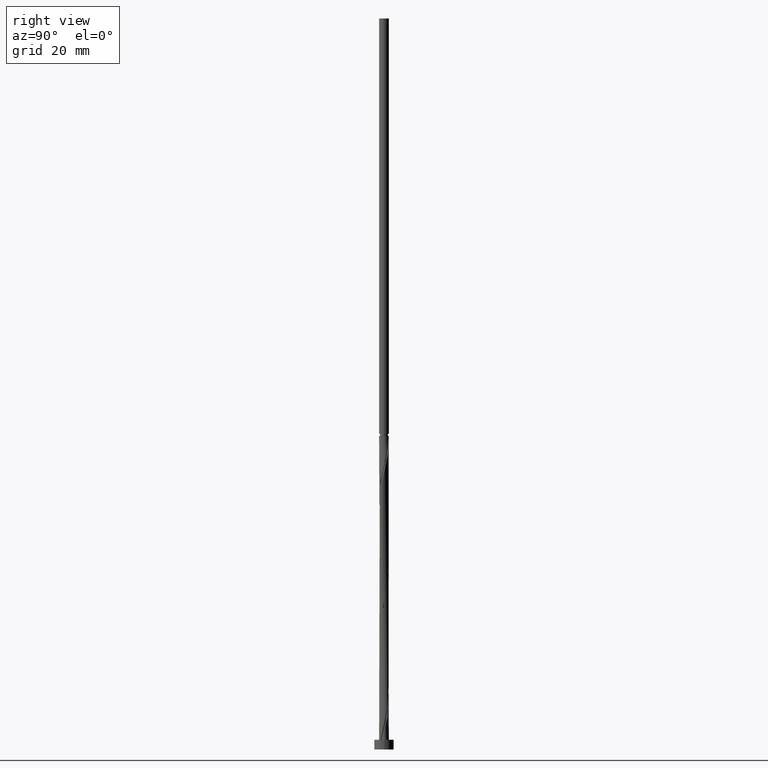
[diagram: clean part render]
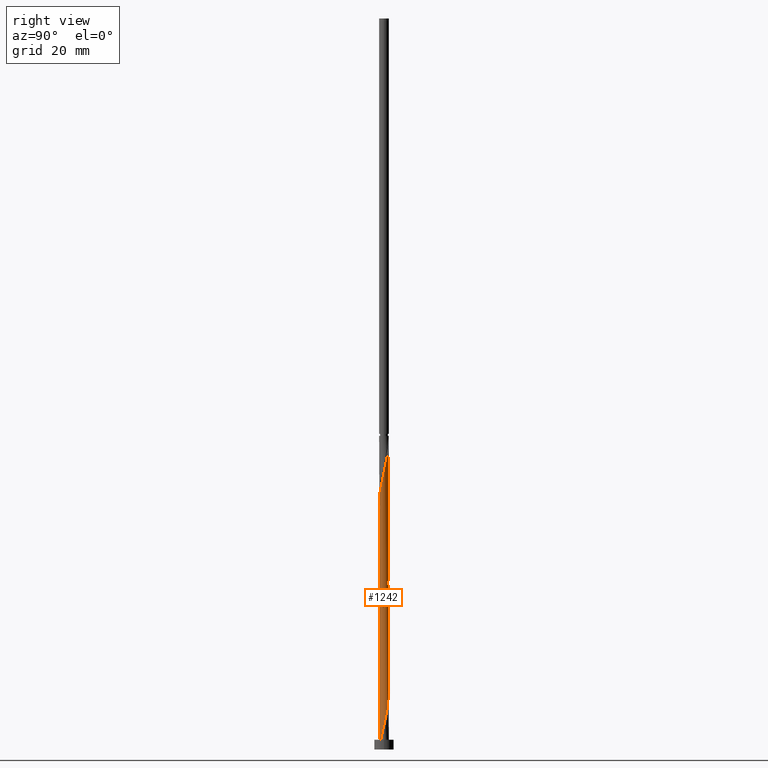
[diagram: same view with one face highlighted and labeled with its STEP entity id]
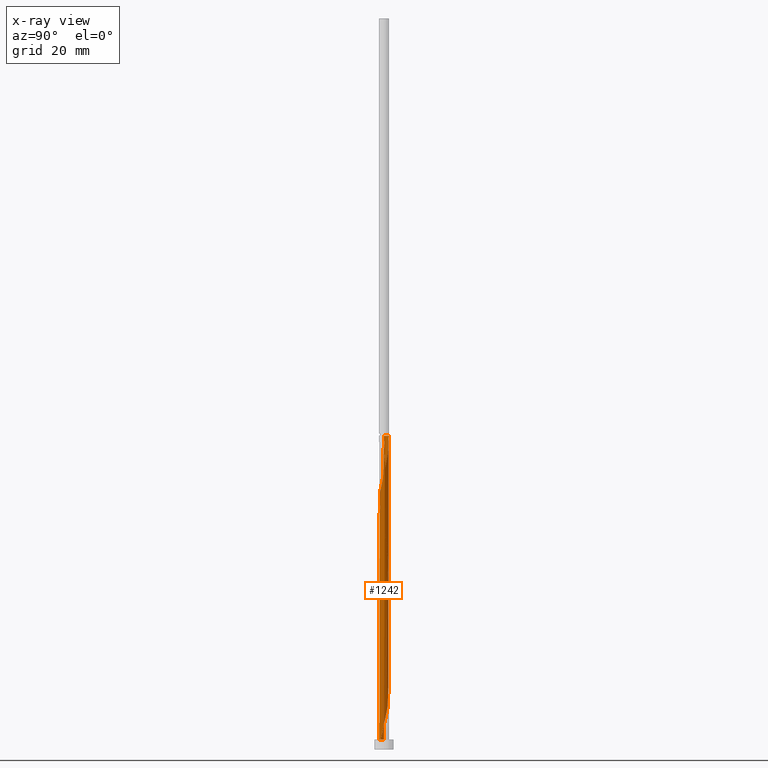
[diagram: x-ray of the same camera — body ghosted, the highlighted face saturated]
A machine part, right view. The second image highlights one B-rep face of the part: STEP entity #1242.
The next image is the same camera in x-ray: the body ghosted, the highlighted face saturated — about 0% of this face is hidden behind the body in this view.
In plain terms, the highlighted cylindrical surface (bore or boss wall) has radius 1 mm, axis along (-0, -0, -1).
Its self-contained STEP definition (entity closure, byte-faithful):
#22 = CARTESIAN_POINT ( 'NONE',  ( -0.6103189422011834342, 0.7921557856826090260, 41.32596282777176810 ) ) ;
#42 = CARTESIAN_POINT ( 'NONE',  ( 0.5941689777681992135, 0.8170896056626844040, 35.87141737322630064 ) ) ;
#51 = CARTESIAN_POINT ( 'NONE',  ( 0.9415987439861353003, -0.3661475155560138806, 55.26535676716571288 ) ) ;
#62 = CARTESIAN_POINT ( 'NONE',  ( 0.9900775620072779226, -0.2010438236649713384, 31.02293252474146001 ) ) ;
#67 = CARTESIAN_POINT ( 'NONE',  ( 0.2284171888200599854, 0.9841228509061507035, 62.53808403989298625 ) ) ;
#70 = CARTESIAN_POINT ( 'NONE',  ( 0.9900775620072779226, -0.2010438236649713384, 4.356265858074802821 ) ) ;
#81 = CARTESIAN_POINT ( 'NONE',  ( -0.8003017030801993226, -0.6165949901442923098, 21.32596282777177166 ) ) ;
#83 = VERTEX_POINT ( 'NONE', #260 ) ;
#87 = CARTESIAN_POINT ( 'NONE',  ( -1.000000000000001554, -2.243523105524465546E-16, 45.20572033737567352 ) ) ;
#90 = CARTESIAN_POINT ( 'NONE',  ( 0.3399002155363922140, 0.9513884807492792861, 10.41687191868085982 ) ) ;
#110 = EDGE_CURVE ( 'NONE', #224, #500, #1204, .T. ) ;
#113 = CARTESIAN_POINT ( 'NONE',  ( -0.1989974874213463751, 0.9800000000002894174, 64.35626585807480637 ) ) ;
#118 = DIRECTION ( 'NONE',  ( 1.000000000000000000, 0.000000000000000000, 0.000000000000000000 ) ) ;
#167 = CARTESIAN_POINT ( 'NONE',  ( 0.1989974874213180644, 0.9800000000000027578, 37.68959919140814208 ) ) ;
#176 =( BOUNDED_CURVE ( )  B_SPLINE_CURVE ( 2, ( #778, #1207, #515, #62, #485, #1359, #795, #906, #208, #1491, #1647, #367, #345, #768, #1088, #382, #1386, #1668, #1510, #81, #1791, #1348, #1376, #1518, #1771, #946, #622, #1528, #1196, #927, #634, #661, #240, #1047, #936, #1781, #496, #90, #219, #505, #1232, #1809, #1059, #652, #230, #1638, #355, #70, #1224, #914, #1501, #642, #1799 ),
 .UNSPECIFIED., .F., .T. ) 
 B_SPLINE_CURVE_WITH_KNOTS ( ( 3, 2, 2, 2, 2, 2, 2, 2, 2, 2, 2, 2, 2, 2, 2, 2, 2, 2, 2, 2, 2, 2, 2, 2, 2, 2, 3 ),
 ( 0.5545252162417515507, 0.5568181818181817677, 0.5681818181818182323, 0.5795454545454545858, 0.5909090909090909394, 0.6022727272727272929, 0.6136363636363636465, 0.6250000000000000000, 0.6363636363636363535, 0.6477272727272727071, 0.6590909090909090606, 0.6704545454545454142, 0.6818181818181817677, 0.6931818181818182323, 0.7045454545454545858, 0.7159090909090909394, 0.7272727272727272929, 0.7386363636363636465, 0.7500000000000000000, 0.7613636363636363535, 0.7727272727272727071, 0.7840909090909090606, 0.7954545454545454142, 0.8068181818181817677, 0.8181818181818182323, 0.8295454545454545858, 0.8345931953246565893 ),
 .UNSPECIFIED. ) 
 CURVE ( )  GEOMETRIC_REPRESENTATION_ITEM ( )  RATIONAL_B_SPLINE_CURVE ( ( 0.9061101570135590144, 0.9072237824201411227, 0.9090909090909183865, 0.8998376744372209579, 0.9090909090909183865, 0.8998376744372209579, 0.9090909090909183865, 0.8998376744372209579, 0.9090909090909183865, 0.8998376744372209579, 0.9090909090909183865, 0.8998376744372209579, 0.9090909090909183865, 0.8998376744372209579, 0.9090909090909183865, 0.8998376744372209579, 0.9090909090909183865, 0.8998376744372209579, 0.9090909090909183865, 0.8998376744372209579, 0.9090909090909183865, 0.8998376744372209579, 0.9090909090909183865, 0.8998376744372209579, 0.9090909090909183865, 0.8998376744372209579, 0.9090909090909183865, 0.8998376744372209579, 0.9090909090909183865, 0.8998376744372209579, 0.9090909090909183865, 0.8998376744372209579, 0.9090909090909183865, 0.8998376744372209579, 0.9090909090909183865, 0.8998376744372209579, 0.9090909090909183865, 0.8998376744372209579, 0.9090909090909183865, 0.8998376744372209579, 0.9090909090909183865, 0.8998376744372209579, 0.9090909090909183865, 0.8998376744372209579, 0.9090909090909183865, 0.8998376744372209579, 0.9090909090909183865, 0.8998376744372209579, 0.9090909090909183865, 0.8998376744372209579, 0.9090909090909183865, 0.9049806112596308072, 0.9045219117924107044 ) ) 
 REPRESENTATION_ITEM ( '' )  );
#177 = CYLINDRICAL_SURFACE ( 'NONE', #330, 1.000000000000000000 ) ;
#184 = CARTESIAN_POINT ( 'NONE',  ( 0.8933318736010463779, 0.4718372192107714858, 58.90172040352934602 ) ) ;
#194 = CARTESIAN_POINT ( 'NONE',  ( -0.05809475930624340839, 1.008611519250726341, 63.75020525201420440 ) ) ;
#196 = CARTESIAN_POINT ( 'NONE',  ( 1.000000000000001554, 2.243523105524465731E-17, 31.87238700404233072 ) ) ;
#208 = CARTESIAN_POINT ( 'NONE',  ( 0.6103189422011833232, -0.7921557856826091371, 27.99262949443844661 ) ) ;
#219 = CARTESIAN_POINT ( 'NONE',  ( 0.4670345966522957970, 0.8842390432059820116, 9.810811312620259628 ) ) ;
#223 = DIRECTION ( 'NONE',  ( -0.000000000000000000, -0.000000000000000000, -1.000000000000000000 ) ) ;
#224 = VERTEX_POINT ( 'NONE', #673 ) ;
#230 = CARTESIAN_POINT ( 'NONE',  ( 0.9741058992719002774, 0.2260922311882604674, 6.174447676256622053 ) ) ;
#240 = CARTESIAN_POINT ( 'NONE',  ( -0.3624206617887749671, 0.9320146264456312668, 13.44717494898389454 ) ) ;
#252 = DIRECTION ( 'NONE',  ( 0.000000000000000000, 0.000000000000000000, 1.000000000000000000 ) ) ;
#260 = CARTESIAN_POINT ( 'NONE',  ( 1.000000000000000000, 1.224646799147353207E-16, 64.35626585807480637 ) ) ;
#270 = CARTESIAN_POINT ( 'NONE',  ( 0.000000000000000000, 0.000000000000000000, 2.000000000000000000 ) ) ;
#306 = CARTESIAN_POINT ( 'NONE',  ( -1.000000000000001776, 0.02877552652381839410, 45.08362233265746255 ) ) ;
#316 = VERTEX_POINT ( 'NONE', #113 ) ;
#329 = ORIENTED_EDGE ( 'NONE', *, *, #1404, .F. ) ;
#330 = AXIS2_PLACEMENT_3D ( 'NONE', #863, #335, #1438 ) ;
#335 = DIRECTION ( 'NONE',  ( -0.000000000000000000, -0.000000000000000000, -1.000000000000000000 ) ) ;
#339 = ORIENTED_EDGE ( 'NONE', *, *, #868, .T. ) ;
#343 = CARTESIAN_POINT ( 'NONE',  ( 0.4964241347574902541, 0.8799064019851123852, 61.32596282777177521 ) ) ;
#345 = CARTESIAN_POINT ( 'NONE',  ( 0.08516121475690778542, -0.9963671850784382444, 25.56838707019601742 ) ) ;
#353 = CARTESIAN_POINT ( 'NONE',  ( 1.006613054557665698, -0.08603694682050783138, 56.47747797928692393 ) ) ;
#355 = CARTESIAN_POINT ( 'NONE',  ( 0.9983453082824719216, -0.05750343842223203106, 4.962326464135406567 ) ) ;
#366 = VECTOR ( 'NONE', #1328, 1000.000000000000000 ) ;
#367 = CARTESIAN_POINT ( 'NONE',  ( 0.2284171888200598743, -0.9841228509061502594, 26.17444767625661228 ) ) ;
#382 = CARTESIAN_POINT ( 'NONE',  ( -0.3399002155363919919, -0.9513884807492792861, 23.75020525201419375 ) ) ;
#399 = AXIS2_PLACEMENT_3D ( 'NONE', #270, #252, #118 ) ;
#463 = EDGE_CURVE ( 'NONE', #1433, #1774, #1802, .T. ) ;
#465 = CARTESIAN_POINT ( 'NONE',  ( -0.9900775620072779226, 0.2010438236649712274, 44.35626585807477085 ) ) ;
#483 = CARTESIAN_POINT ( 'NONE',  ( 0.7242137496448772804, 0.7044051693801058889, 60.11384161565054995 ) ) ;
#485 = CARTESIAN_POINT ( 'NONE',  ( 0.9417047178041619837, -0.3364405214378715647, 30.41687191868086160 ) ) ;
#489 = EDGE_LOOP ( 'NONE', ( #1147, #339, #941, #588, #791, #1309, #1611, #797, #329 ) ) ;
#494 = CARTESIAN_POINT ( 'NONE',  ( 0.3624206617887749671, 0.9320146264456315999, 61.93202343383239139 ) ) ;
#496 = CARTESIAN_POINT ( 'NONE',  ( 0.1989974874213180644, 0.9800000000000027578, 11.02293252474147423 ) ) ;
#500 = VERTEX_POINT ( 'NONE', #644 ) ;
#505 = CARTESIAN_POINT ( 'NONE',  ( 0.5941689777681992135, 0.8170896056626844040, 9.204750706559645224 ) ) ;
#513 = CARTESIAN_POINT ( 'NONE',  ( 0.05809475930624353329, -1.008611519250726341, 50.41687191868086160 ) ) ;
#515 = CARTESIAN_POINT ( 'NONE',  ( 0.9983453082824719216, -0.05750343842223203106, 31.62899313080207975 ) ) ;
#519 = VERTEX_POINT ( 'NONE', #1792 ) ;
#522 = CARTESIAN_POINT ( 'NONE',  ( -0.2284171888200598743, -0.9841228509061511476, 49.20475070655965766 ) ) ;
#576 = DIRECTION ( 'NONE',  ( -1.000000000000000000, 0.000000000000000000, 0.000000000000000000 ) ) ;
#588 = ORIENTED_EDGE ( 'NONE', *, *, #1630, .T. ) ;
#591 = CARTESIAN_POINT ( 'NONE',  ( -0.4964241347574900876, 0.8799064019851116081, 40.71990222171115192 ) ) ;
#612 = FACE_OUTER_BOUND ( 'NONE', #489, .T. ) ;
#622 = CARTESIAN_POINT ( 'NONE',  ( -0.9417047178041619837, 0.3364405214378712872, 17.08353858534752945 ) ) ;
#634 = CARTESIAN_POINT ( 'NONE',  ( -0.6103189422011834342, 0.7921557856826090260, 14.65929616110510381 ) ) ;
#640 = CARTESIAN_POINT ( 'NONE',  ( -0.1989974874213463751, 0.9800000000002894174, 64.35626585807480637 ) ) ;
#642 = CARTESIAN_POINT ( 'NONE',  ( 0.7714250334692176470, -0.6394811313938797426, 2.270401114688097355 ) ) ;
#644 = CARTESIAN_POINT ( 'NONE',  ( 0.7278803944357659095, -0.6857041135913045649, 2.000000000000001332 ) ) ;
#650 = CARTESIAN_POINT ( 'NONE',  ( -0.7242137496448768363, -0.7044051693801062219, 46.78050828231722136 ) ) ;
#652 = CARTESIAN_POINT ( 'NONE',  ( 0.9415987439861346342, 0.3661475155560133254, 6.780508282317221358 ) ) ;
#659 = CARTESIAN_POINT ( 'NONE',  ( -0.8087728116229614406, -0.5881211942954389649, 46.17444767625661939 ) ) ;
#661 = CARTESIAN_POINT ( 'NONE',  ( -0.4964241347574900876, 0.8799064019851116081, 14.05323555504449651 ) ) ;
#673 = CARTESIAN_POINT ( 'NONE',  ( -1.000000000000000000, 0.000000000000000000, 2.000000000000000000 ) ) ;
#719 = LINE ( 'NONE', #1734, #1039 ) ;
#739 = CARTESIAN_POINT ( 'NONE',  ( 0.3399002155363922140, 0.9513884807492792861, 37.08353858534754011 ) ) ;
#755 = CARTESIAN_POINT ( 'NONE',  ( 0.8087728116229615516, 0.5881211942954385208, 59.50778100958995509 ) ) ;
#768 = CARTESIAN_POINT ( 'NONE',  ( -0.05809475930624380391, -1.008611519250725896, 24.96232646413540834 ) ) ;
#778 = CARTESIAN_POINT ( 'NONE',  ( 1.000000000000001554, 2.243523105524465731E-17, 31.87238700404233072 ) ) ;
#782 = VERTEX_POINT ( 'NONE', #1109 ) ;
#785 = CARTESIAN_POINT ( 'NONE',  ( -1.000000000000004219, 0.000000000000000000, 64.35626585807480637 ) ) ;
#791 = ORIENTED_EDGE ( 'NONE', *, *, #110, .T. ) ;
#793 = CARTESIAN_POINT ( 'NONE',  ( -0.4964241347574906427, -0.8799064019851123852, 47.99262949443844661 ) ) ;
#795 = CARTESIAN_POINT ( 'NONE',  ( 0.8087728116229613295, -0.5881211942954388538, 29.20475070655966832 ) ) ;
#797 = ORIENTED_EDGE ( 'NONE', *, *, #1304, .T. ) ;
#802 = CARTESIAN_POINT ( 'NONE',  ( 0.8709502235331668674, 0.4913712528501535948, 34.05323555504450894 ) ) ;
#803 = VECTOR ( 'NONE', #223, 1000.000000000000000 ) ;
#863 = CARTESIAN_POINT ( 'NONE',  ( 0.000000000000000000, 0.000000000000000000, 150.0000000000000000 ) ) ;
#868 = EDGE_CURVE ( 'NONE', #1433, #316, #1833, .T. ) ;
#879 = CARTESIAN_POINT ( 'NONE',  ( -0.08516121475690806297, 0.9963671850784382444, 38.90172040352934602 ) ) ;
#887 = CARTESIAN_POINT ( 'NONE',  ( 0.05809475930624354717, 1.008611519250725896, 38.29565979746872983 ) ) ;
#893 = CARTESIAN_POINT ( 'NONE',  ( 0.9741058992719003884, -0.2260922311882608560, 55.87141737322632906 ) ) ;
#895 = DIRECTION ( 'NONE',  ( -0.000000000000000000, -0.000000000000000000, -1.000000000000000000 ) ) ;
#903 = CARTESIAN_POINT ( 'NONE',  ( -1.000000000000001998, -0.02877552652381784939, 43.62890938349214309 ) ) ;
#906 = CARTESIAN_POINT ( 'NONE',  ( 0.7242137496448766143, -0.7044051693801057779, 28.59869010049903437 ) ) ;
#914 = CARTESIAN_POINT ( 'NONE',  ( 0.8933318736010452676, -0.4718372192107715968, 3.144144645953590000 ) ) ;
#924 = CARTESIAN_POINT ( 'NONE',  ( -0.9983453082824724767, -0.05750343842223177432, 43.75020525201419730 ) ) ;
#927 = CARTESIAN_POINT ( 'NONE',  ( -0.7242137496448765033, 0.7044051693801059999, 15.26535676716571110 ) ) ;
#936 = CARTESIAN_POINT ( 'NONE',  ( -0.08516121475690806297, 0.9963671850784382444, 12.23505373686267994 ) ) ;
#941 = ORIENTED_EDGE ( 'NONE', *, *, #1796, .F. ) ;
#946 = CARTESIAN_POINT ( 'NONE',  ( -0.9900775620072779226, 0.2010438236649712274, 17.68959919140812431 ) ) ;
#995 = DIRECTION ( 'NONE',  ( -0.000000000000000000, -0.000000000000000000, -1.000000000000000000 ) ) ;
#1038 = CARTESIAN_POINT ( 'NONE',  ( 0.8003017030801991005, 0.6165949901442925318, 34.65929616110509670 ) ) ;
#1039 = VECTOR ( 'NONE', #895, 1000.000000000000000 ) ;
#1047 = CARTESIAN_POINT ( 'NONE',  ( -0.2284171888200597356, 0.9841228509061504814, 12.84111434292328369 ) ) ;
#1057 = CARTESIAN_POINT ( 'NONE',  ( 0.6103189422011836562, 0.7921557856826093591, 60.71990222171115903 ) ) ;
#1059 = CARTESIAN_POINT ( 'NONE',  ( 0.8709502235331668674, 0.4913712528501535948, 7.386568888377832209 ) ) ;
#1069 = CARTESIAN_POINT ( 'NONE',  ( 0.9741058992719002774, 0.2260922311882604674, 32.84111434292329079 ) ) ;
#1072 = AXIS2_PLACEMENT_3D ( 'NONE', #1698, #995, #576 ) ;
#1077 = CARTESIAN_POINT ( 'NONE',  ( 0.9983453082824724767, 0.05750343842223163554, 57.08353858534754721 ) ) ;
#1088 = CARTESIAN_POINT ( 'NONE',  ( -0.1989974874213179534, -0.9800000000000027578, 24.35626585807480282 ) ) ;
#1109 = CARTESIAN_POINT ( 'NONE',  ( -1.000000000000001776, 3.552244917080359244E-16, 43.50681137877393923 ) ) ;
#1147 = ORIENTED_EDGE ( 'NONE', *, *, #463, .F. ) ;
#1162 = CARTESIAN_POINT ( 'NONE',  ( -0.2284171888200597356, 0.9841228509061504814, 39.50778100958994798 ) ) ;
#1186 = CARTESIAN_POINT ( 'NONE',  ( -1.000000000000001554, -2.243523105524465546E-16, 45.20572033737567352 ) ) ;
#1191 =( BOUNDED_CURVE ( )  B_SPLINE_CURVE ( 2, ( #1186, #306, #1450, #465, #1330, #1461, #1311, #1609, #22, #591, #1601, #1162, #879, #887, #167, #739, #1472, #42, #1761, #1038, #802, #1625, #1069, #1217, #196 ),
 .UNSPECIFIED., .F., .T. ) 
 B_SPLINE_CURVE_WITH_KNOTS ( ( 3, 2, 2, 2, 2, 2, 2, 2, 2, 2, 2, 2, 3 ),
 ( 0.4295252162417515507, 0.4318181818181818232, 0.4431818181818181768, 0.4545454545454545303, 0.4659090909090908839, 0.4772727272727272929, 0.4886363636363636465, 0.5000000000000000000, 0.5113636363636363535, 0.5227272727272727071, 0.5340909090909090606, 0.5454545454545454142, 0.5545252162417515507 ),
 .UNSPECIFIED. ) 
 CURVE ( )  GEOMETRIC_REPRESENTATION_ITEM ( )  RATIONAL_B_SPLINE_CURVE ( ( 0.9061101570135590144, 0.9072237824201411227, 0.9090909090909183865, 0.8998376744372209579, 0.9090909090909183865, 0.8998376744372209579, 0.9090909090909183865, 0.8998376744372209579, 0.9090909090909183865, 0.8998376744372209579, 0.9090909090909183865, 0.8998376744372209579, 0.9090909090909183865, 0.8998376744372209579, 0.9090909090909183865, 0.8998376744372209579, 0.9090909090909183865, 0.8998376744372209579, 0.9090909090909183865, 0.8998376744372209579, 0.9090909090909183865, 0.8998376744372209579, 0.9090909090909183865, 0.9017048011079982217, 0.9061101570135590144 ) ) 
 REPRESENTATION_ITEM ( '' )  );
#1194 = CARTESIAN_POINT ( 'NONE',  ( -0.9417047178041623168, -0.3364405214378713427, 44.96232646413541545 ) ) ;
#1196 = CARTESIAN_POINT ( 'NONE',  ( -0.8087728116229613295, 0.5881211942954388538, 15.87141737322631663 ) ) ;
#1204 = CIRCLE ( 'NONE', #399, 1.000000000000000000 ) ;
#1207 = CARTESIAN_POINT ( 'NONE',  ( 1.000000000000001776, -0.02877552652381926146, 31.75028899932412330 ) ) ;
#1215 = CARTESIAN_POINT ( 'NONE',  ( -0.08516121475690814624, -0.9963671850784385775, 49.81081131262027384 ) ) ;
#1217 = CARTESIAN_POINT ( 'NONE',  ( 1.000000000000001332, 0.1145289273851261419, 32.35834695701364438 ) ) ;
#1224 = CARTESIAN_POINT ( 'NONE',  ( 0.9417047178041619837, -0.3364405214378715647, 3.750205252014194190 ) ) ;
#1225 = CARTESIAN_POINT ( 'NONE',  ( -1.000000000000000000, 0.000000000000000000, 150.0000000000000000 ) ) ;
#1230 = CARTESIAN_POINT ( 'NONE',  ( 0.1989974874213177036, -0.9800000000000029798, 51.02293252474146357 ) ) ;
#1232 = CARTESIAN_POINT ( 'NONE',  ( 0.6972353404241992125, 0.7168422979034886344, 8.598690100499045030 ) ) ;
#1242 = ADVANCED_FACE ( 'NONE', ( #612 ), #177, .T. ) ;
#1304 = EDGE_CURVE ( 'NONE', #83, #519, #719, .T. ) ;
#1309 = ORIENTED_EDGE ( 'NONE', *, *, #1460, .F. ) ;
#1311 = CARTESIAN_POINT ( 'NONE',  ( -0.8087728116229613295, 0.5881211942954388538, 42.53808403989298625 ) ) ;
#1328 = DIRECTION ( 'NONE',  ( -0.000000000000000000, -0.000000000000000000, -1.000000000000000000 ) ) ;
#1330 = CARTESIAN_POINT ( 'NONE',  ( -0.9417047178041619837, 0.3364405214378712872, 43.75020525201419730 ) ) ;
#1336 = CARTESIAN_POINT ( 'NONE',  ( 0.8003017030801996556, -0.6165949901442931980, 54.05323555504450894 ) ) ;
#1348 = CARTESIAN_POINT ( 'NONE',  ( -0.9415987439861345232, -0.3661475155560138806, 20.11384161565054995 ) ) ;
#1359 = CARTESIAN_POINT ( 'NONE',  ( 0.8933318736010452676, -0.4718372192107715968, 29.81081131262025252 ) ) ;
#1373 = CARTESIAN_POINT ( 'NONE',  ( 0.3399002155363920474, -0.9513884807492801743, 51.62899313080206554 ) ) ;
#1376 = CARTESIAN_POINT ( 'NONE',  ( -0.9741058992719000553, -0.2260922311882607449, 19.50778100958995154 ) ) ;
#1386 = CARTESIAN_POINT ( 'NONE',  ( -0.4670345966522956860, -0.8842390432059820116, 23.14414464595359178 ) ) ;
#1404 = EDGE_CURVE ( 'NONE', #1774, #519, #1191, .T. ) ;
#1433 = VERTEX_POINT ( 'NONE', #785 ) ;
#1438 = DIRECTION ( 'NONE',  ( -1.000000000000000000, 0.000000000000000000, 0.000000000000000000 ) ) ;
#1449 = LINE ( 'NONE', #1469, #366 ) ;
#1450 = CARTESIAN_POINT ( 'NONE',  ( -0.9983453082824719216, 0.05750343842223190616, 44.96232646413541545 ) ) ;
#1460 = EDGE_CURVE ( 'NONE', #519, #500, #176, .T. ) ;
#1461 = CARTESIAN_POINT ( 'NONE',  ( -0.8933318736010451566, 0.4718372192107715968, 43.14414464595358112 ) ) ;
#1469 = CARTESIAN_POINT ( 'NONE',  ( -1.000000000000000000, 0.000000000000000000, 150.0000000000000000 ) ) ;
#1472 = CARTESIAN_POINT ( 'NONE',  ( 0.4670345966522957970, 0.8842390432059820116, 36.47747797928690972 ) ) ;
#1479 = CARTESIAN_POINT ( 'NONE',  ( 0.9417047178041623168, 0.3364405214378712317, 58.29565979746875115 ) ) ;
#1489 = CARTESIAN_POINT ( 'NONE',  ( 0.08516121475690825726, 0.9963671850784385775, 63.14414464595360954 ) ) ;
#1491 = CARTESIAN_POINT ( 'NONE',  ( 0.4964241347574899765, -0.8799064019851116081, 27.38656888837782688 ) ) ;
#1501 = CARTESIAN_POINT ( 'NONE',  ( 0.8087728116229613295, -0.5881211942954388538, 2.538084039892981814 ) ) ;
#1510 = CARTESIAN_POINT ( 'NONE',  ( -0.6972353404241995456, -0.7168422979034884124, 21.93202343383237363 ) ) ;
#1516 = CARTESIAN_POINT ( 'NONE',  ( -0.9900775620072785888, -0.2010438236649711996, 44.35626585807480637 ) ) ;
#1518 = CARTESIAN_POINT ( 'NONE',  ( -1.006613054557665032, -0.08603694682050770648, 18.90172040352933180 ) ) ;
#1528 = CARTESIAN_POINT ( 'NONE',  ( -0.8933318736010451566, 0.4718372192107715968, 16.47747797928691682 ) ) ;
#1588 =( BOUNDED_CURVE ( )  B_SPLINE_CURVE ( 2, ( #1666, #903, #924, #1516, #1194, #1768, #659, #650, #1797, #793, #1655, #522, #1215, #513, #1230, #1373, #1635, #1789, #1807, #1336, #1779, #51, #893, #353, #1077, #1623, #1479, #184, #755, #483, #1057, #343, #494, #67, #1489, #194, #640 ),
 .UNSPECIFIED., .F., .T. ) 
 B_SPLINE_CURVE_WITH_KNOTS ( ( 3, 2, 2, 2, 2, 2, 2, 2, 2, 2, 2, 2, 2, 2, 2, 2, 2, 2, 3 ),
 ( 0.5545252162417515507, 0.5568181818181818787, 0.5681818181818181213, 0.5795454545454545858, 0.5909090909090908283, 0.6022727272727272929, 0.6136363636363636465, 0.6250000000000000000, 0.6363636363636363535, 0.6477272727272727071, 0.6590909090909091717, 0.6704545454545454142, 0.6818181818181818787, 0.6931818181818181213, 0.7045454545454545858, 0.7159090909090908283, 0.7272727272727272929, 0.7386363636363636465, 0.7500000000000000000 ),
 .UNSPECIFIED. ) 
 CURVE ( )  GEOMETRIC_REPRESENTATION_ITEM ( )  RATIONAL_B_SPLINE_CURVE ( ( 0.9061101570135703387, 0.9072237824201524470, 0.9090909090909298218, 0.8998376744372320601, 0.9090909090909298218, 0.8998376744372320601, 0.9090909090909298218, 0.8998376744372320601, 0.9090909090909298218, 0.8998376744372320601, 0.9090909090909298218, 0.8998376744372320601, 0.9090909090909298218, 0.8998376744372320601, 0.9090909090909298218, 0.8998376744372320601, 0.9090909090909298218, 0.8998376744372320601, 0.9090909090909298218, 0.8998376744372320601, 0.9090909090909298218, 0.8998376744372320601, 0.9090909090909298218, 0.8998376744372320601, 0.9090909090909298218, 0.8998376744372320601, 0.9090909090909298218, 0.8998376744372320601, 0.9090909090909298218, 0.8998376744372320601, 0.9090909090909298218, 0.8998376744372320601, 0.9090909090909298218, 0.8998376744372320601, 0.9090909090909298218, 0.8998376744372320601, 0.9090909090909298218 ) ) 
 REPRESENTATION_ITEM ( '' )  );
#1601 = CARTESIAN_POINT ( 'NONE',  ( -0.3624206617887749671, 0.9320146264456312668, 40.11384161565056417 ) ) ;
#1609 = CARTESIAN_POINT ( 'NONE',  ( -0.7242137496448765033, 0.7044051693801059999, 41.93202343383237007 ) ) ;
#1611 = ORIENTED_EDGE ( 'NONE', *, *, #1304, .F. ) ;
#1623 = CARTESIAN_POINT ( 'NONE',  ( 0.9900775620072785888, 0.2010438236649710886, 57.68959919140814208 ) ) ;
#1625 = CARTESIAN_POINT ( 'NONE',  ( 0.9415987439861346342, 0.3661475155560133254, 33.44717494898387145 ) ) ;
#1630 = EDGE_CURVE ( 'NONE', #782, #224, #1449, .T. ) ;
#1635 = CARTESIAN_POINT ( 'NONE',  ( 0.4670345966522955750, -0.8842390432059824557, 52.23505373686268172 ) ) ;
#1638 = CARTESIAN_POINT ( 'NONE',  ( 1.006613054557665032, 0.08603694682050738729, 5.568387070196015642 ) ) ;
#1647 = CARTESIAN_POINT ( 'NONE',  ( 0.3624206617887749671, -0.9320146264456312668, 26.78050828231723202 ) ) ;
#1655 = CARTESIAN_POINT ( 'NONE',  ( -0.3624206617887753001, -0.9320146264456315999, 48.59869010049904148 ) ) ;
#1666 = CARTESIAN_POINT ( 'NONE',  ( -1.000000000000001776, 3.552244917080359244E-16, 43.50681137877393923 ) ) ;
#1668 = CARTESIAN_POINT ( 'NONE',  ( -0.5941689777681991025, -0.8170896056626845150, 22.53808403989297560 ) ) ;
#1698 = CARTESIAN_POINT ( 'NONE',  ( 0.000000000000000000, 0.000000000000000000, 64.35626585807480637 ) ) ;
#1734 = CARTESIAN_POINT ( 'NONE',  ( 1.000000000000000000, 1.224646799147353207E-16, 150.0000000000000000 ) ) ;
#1761 = CARTESIAN_POINT ( 'NONE',  ( 0.6972353404241992125, 0.7168422979034886344, 35.26535676716570578 ) ) ;
#1768 = CARTESIAN_POINT ( 'NONE',  ( -0.8933318736010460448, -0.4718372192107717633, 45.56838707019603163 ) ) ;
#1771 = CARTESIAN_POINT ( 'NONE',  ( -0.9983453082824719216, 0.05750343842223190616, 18.29565979746874405 ) ) ;
#1774 = VERTEX_POINT ( 'NONE', #87 ) ;
#1779 = CARTESIAN_POINT ( 'NONE',  ( 0.8709502235331674225, -0.4913712528501537058, 54.65929616110511091 ) ) ;
#1781 = CARTESIAN_POINT ( 'NONE',  ( 0.05809475930624354717, 1.008611519250725896, 11.62899313080207264 ) ) ;
#1789 = CARTESIAN_POINT ( 'NONE',  ( 0.5941689777681995466, -0.8170896056626847370, 52.84111434292329079 ) ) ;
#1791 = CARTESIAN_POINT ( 'NONE',  ( -0.8709502235331669784, -0.4913712528501533727, 20.71990222171116613 ) ) ;
#1792 = CARTESIAN_POINT ( 'NONE',  ( 1.000000000000001554, 2.243523105524465423E-17, 31.87238700404233072 ) ) ;
#1796 = EDGE_CURVE ( 'NONE', #782, #316, #1588, .T. ) ;
#1797 = CARTESIAN_POINT ( 'NONE',  ( -0.6103189422011836562, -0.7921557856826091371, 47.38656888837783043 ) ) ;
#1799 = CARTESIAN_POINT ( 'NONE',  ( 0.7278803944357659095, -0.6857041135913046759, 2.000000000000001332 ) ) ;
#1802 = LINE ( 'NONE', #1225, #803 ) ;
#1807 = CARTESIAN_POINT ( 'NONE',  ( 0.6972353404241995456, -0.7168422979034888565, 53.44717494898389276 ) ) ;
#1809 = CARTESIAN_POINT ( 'NONE',  ( 0.8003017030801991005, 0.6165949901442925318, 7.992629494438434179 ) ) ;
#1833 = CIRCLE ( 'NONE', #1072, 1.000000000000004219 ) ;